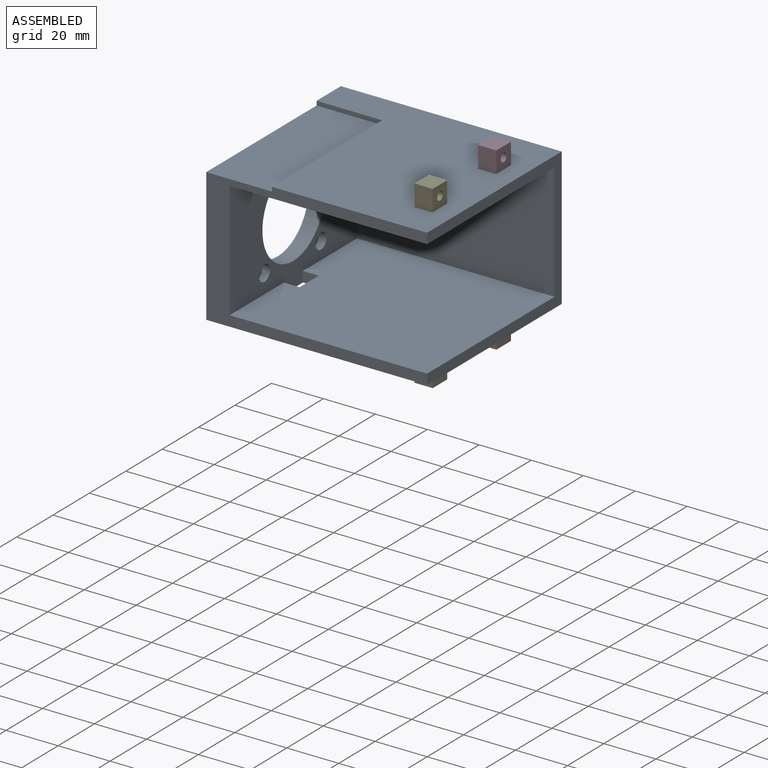
[diagram: assembled view]
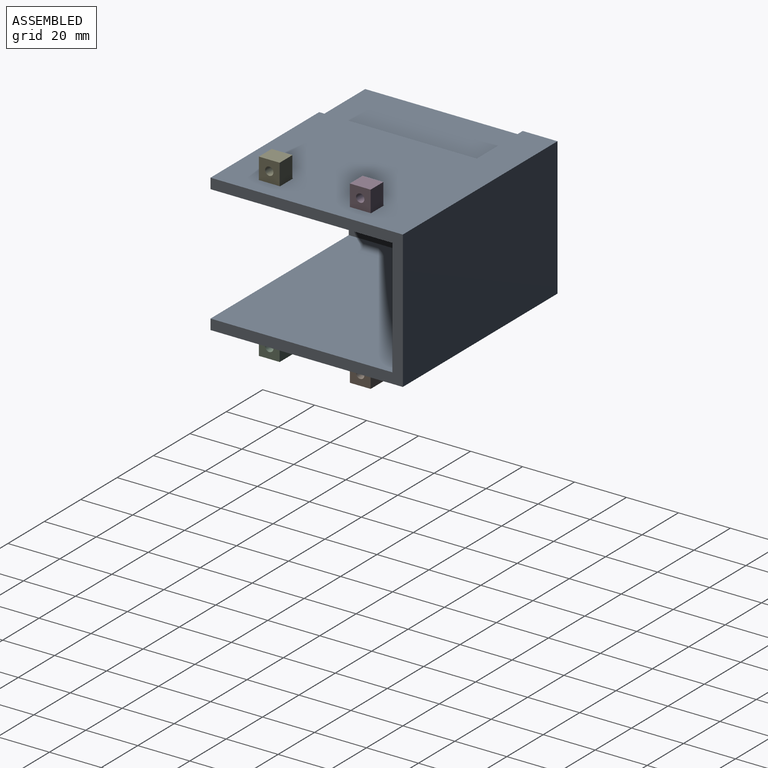
[diagram: assembled view, second angle]
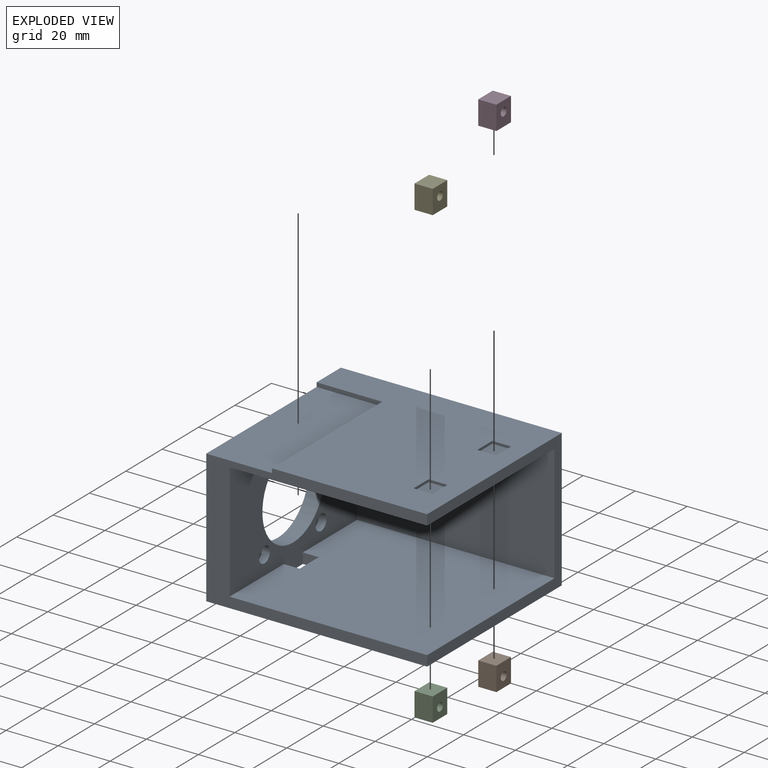
[diagram: exploded view]
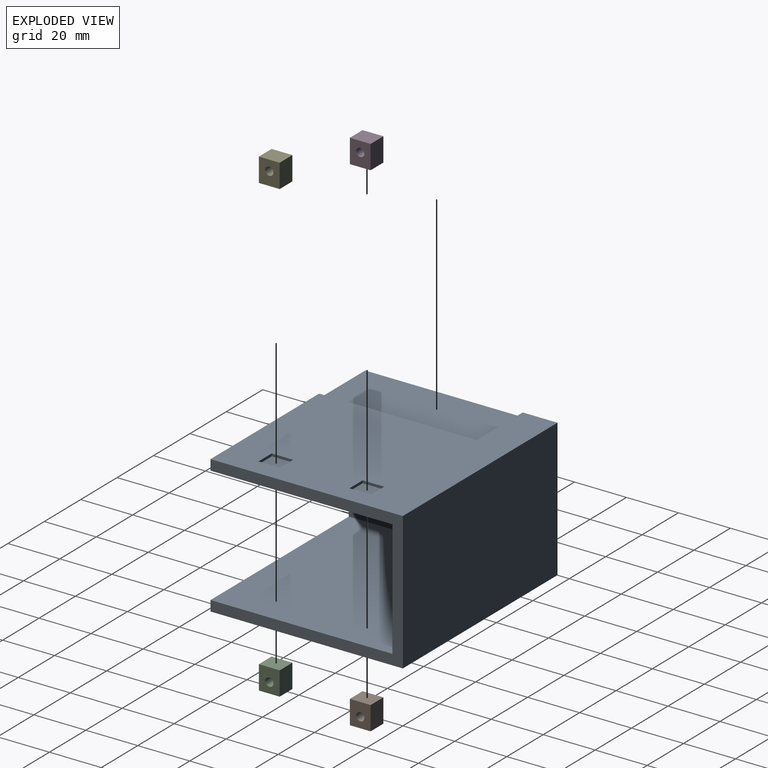
[diagram: exploded view, second angle]
ASSEMBLY  parts=5 mates=4
PART A: 58 faces, bbox 53x74x85 mm
  f0: plane 74x53mm, normal (0,0,1), area 2116mm2, adj f1,f2,f3,f9,f14,f15,f16,f17
  f1: plane 85x53mm, normal (0,-1,0), area 1043.6mm2, adj f0,f2,f3,f4,f11,f12,f13,f55
  f2: plane 85x74mm, normal (-1,0,0), area 6104.8mm2, adj f0,f1,f9,f12,f13,f32,f33,f34
  f3: plane 85x74mm, normal (1,0,0), area 4634.6mm2, adj f0,f1,f9,f12,f35,f36,f37,f38
  f4: plane 76x70mm, normal (1,0,0), area 5256mm2, adj f1,f10,f12,f13,f32,f33,f34
  f5: cylinder r=1.65mm len=3.3mm, axis (0,0,1), area 31.1mm2, adj f22,f30
  f6: cylinder r=1.65mm len=3.3mm, axis (0,0,1), area 31.1mm2, adj f22,f28
  f7: cylinder r=1.65mm len=3.3mm, axis (0,0,1), area 31.1mm2, adj f22,f26
  f8: cylinder r=1.65mm len=3.3mm, axis (0,0,1), area 31.1mm2, adj f22,f24
  f9: plane 85x53mm, normal (0,1,0), area 4505mm2, adj f0,f2,f3,f12
  f10: plane 76x45mm, normal (0,-1,0), area 3420mm2, adj f4,f11,f12,f13
  f11: plane 76x70mm, normal (-1,0,0), area 5320mm2, adj f1,f10,f12,f13
  f12: plane 74x53mm, normal (0,0,-1), area 772mm2, adj f1,f2,f3,f4,f9,f10,f11
  f13: plane 70x49mm, normal (0,0,-1), area 2171mm2, adj f1,f2,f4,f10,f11,f23,f25,f27
  f14: plane 34.22x3mm, normal (0,-1,0), area 102.7mm2, adj f0,f15,f21,f22
  f15: plane 4.02x3.37mm, normal (0.64,-0.77,0), area 15.7mm2, adj f0,f14,f16,f22
  f16: plane 34.28x3mm, normal (1,0,0), area 102.8mm2, adj f0,f15,f17,f22
  f17: plane 4.02x3.37mm, normal (0.64,0.77,0), area 15.7mm2, adj f0,f16,f18,f22
  f18: plane 34.22x3mm, normal (0,1,0), area 102.7mm2, adj f0,f17,f19,f22
  f19: plane 4.02x3.37mm, normal (-0.64,0.77,0), area 15.7mm2, adj f0,f18,f20,f22
  f20: plane 34.28x3mm, normal (-1,0,0), area 102.8mm2, adj f0,f19,f21,f22
  f21: plane 4.02x3.37mm, normal (-0.64,-0.77,0), area 15.7mm2, adj f0,f14,f20,f22
  f22: plane 42.26x41.03mm, normal (0,0,1), area 764.6mm2, adj f5,f6,f7,f8,f14,f15,f16,f17
  f23: cylinder r=17mm len=34mm, axis (0,0,1), area 640.9mm2, adj f13,f22
  f24: plane 6x6mm, normal (0,0,-1), area 19.7mm2, adj f8,f25
  f25: cylinder r=3mm len=6mm, axis (0,0,-1), area 56.5mm2, adj f13,f24
  f26: plane 6x6mm, normal (0,0,-1), area 19.7mm2, adj f7,f27
  f27: cylinder r=3mm len=6mm, axis (0,0,-1), area 56.5mm2, adj f13,f26
  f28: plane 6x6mm, normal (0,0,-1), area 19.7mm2, adj f6,f29
  f29: cylinder r=3mm len=6mm, axis (0,0,-1), area 56.5mm2, adj f13,f28
  f30: plane 6x6mm, normal (0,0,-1), area 19.7mm2, adj f5,f31
  f31: cylinder r=3mm len=6mm, axis (0,0,-1), area 56.5mm2, adj f13,f30
  f32: plane 6.1x4mm, normal (0,-1,0), area 24.4mm2, adj f2,f4,f13,f33
  f33: plane 10.5x4mm, normal (0,0,1), area 42mm2, adj f2,f4,f32,f34
  f34: plane 6.1x4mm, normal (0,1,0), area 24.4mm2, adj f2,f4,f13,f33
  f35: plane 7.3x1mm, normal (0,1,0), area 7.3mm2, adj f3,f36,f38,f39
  f36: plane 8.3x1mm, normal (0,0,1), area 8.3mm2, adj f3,f35,f37,f39
  f37: plane 7.3x1mm, normal (0,-1,0), area 7.3mm2, adj f3,f36,f38,f39
  f38: plane 8.3x1mm, normal (0,0,-1), area 8.3mm2, adj f3,f35,f37,f39
  f39: plane 8.3x7.3mm, normal (1,0,0), area 60.6mm2, adj f35,f36,f37,f38
  f40: plane 8.3x1mm, normal (0,0,1), area 8.3mm2, adj f3,f41,f43,f44
  f41: plane 7.3x1mm, normal (0,-1,0), area 7.3mm2, adj f3,f40,f42,f44
  f42: plane 8.3x1mm, normal (0,0,-1), area 8.3mm2, adj f3,f41,f43,f44
  f43: plane 7.3x1mm, normal (0,1,0), area 7.3mm2, adj f3,f40,f42,f44
  f44: plane 8.3x7.3mm, normal (1,0,0), area 60.6mm2, adj f40,f41,f42,f43
  f45: plane 8.3x1mm, normal (0,0,1), area 8.3mm2, adj f2,f46,f48,f49
  f46: plane 7.3x1mm, normal (0,1,0), area 7.3mm2, adj f2,f45,f47,f49
  f47: plane 8.3x1mm, normal (0,0,-1), area 8.3mm2, adj f2,f46,f48,f49
  f48: plane 7.3x1mm, normal (0,-1,0), area 7.3mm2, adj f2,f45,f47,f49
  f49: plane 8.3x7.3mm, normal (-1,0,0), area 60.6mm2, adj f45,f46,f47,f48
  f50: plane 7.3x1mm, normal (0,1,0), area 7.3mm2, adj f2,f51,f53,f54
  f51: plane 8.3x1mm, normal (0,0,-1), area 8.3mm2, adj f2,f50,f52,f54
  f52: plane 7.3x1mm, normal (0,-1,0), area 7.3mm2, adj f2,f51,f53,f54
  f53: plane 8.3x1mm, normal (0,0,1), area 8.3mm2, adj f2,f50,f52,f54
  f54: plane 8.3x7.3mm, normal (-1,0,0), area 60.6mm2, adj f50,f51,f52,f53
  f55: plane 60.64x1.64mm, normal (0,0,1), area 99.3mm2, adj f1,f3,f56,f57
  f56: plane 25.3x1.64mm, normal (0,-1,0), area 41.4mm2, adj f0,f3,f55,f57
  f57: plane 60.64x25.3mm, normal (1,0,0), area 1534.2mm2, adj f0,f1,f55,f56
PART B: 9 faces, bbox 8x9.2x7 mm
  f0: plane 6x6mm, normal (0,0,1), area 20.2mm2, adj f1,f5
  f1: cylinder r=3mm len=6mm, axis (0,0,-1), area 56.5mm2, adj f0,f2
  f2: plane 9.15x8mm, normal (0,0,1), area 44.9mm2, adj f1,f4,f6,f7,f8
  f3: plane 9.15x8mm, normal (0,0,-1), area 65.2mm2, adj f4,f5,f6,f7,f8
  f4: plane 8x7mm, normal (0,1,0), area 56mm2, adj f2,f3,f6,f7
  f5: cylinder r=1.6mm len=4mm, axis (0,0,-1), area 40.2mm2, adj f0,f3
  f6: plane 9.15x7mm, normal (-1,0,0), area 64mm2, adj f2,f3,f4,f8
  f7: plane 9.15x7mm, normal (1,0,0), area 64mm2, adj f2,f3,f4,f8
  f8: plane 8x7mm, normal (0,-1,0), area 56mm2, adj f2,f3,f6,f7
PART C: same geometry as B
PART D: same geometry as B
PART E: same geometry as B
PLACE A rot(axis=(0,-1,0),90deg) t=(0,35,22.5)mm
PLACE B rot(axis=(-0.58,-0.58,0.58),120deg) t=(-7.3,48.5,-4.15)mm
PLACE C rot(axis=(-0.58,-0.58,0.58),120deg) t=(-7.3,13.5,-4.15)mm
PLACE D rot(axis=(0.58,-0.58,-0.58),120deg) t=(-7.3,56.5,49.15)mm
PLACE E rot(axis=(0.58,-0.58,-0.58),120deg) t=(-7.3,21.5,49.15)mm
MATE fastened A.f44 <-> E.f8  axis (0,0,1) through (-7.3,17.5,48)mm
MATE fastened B.f8 <-> A.f54  axis (0,0,1) through (-7.3,52.5,-3)mm
MATE fastened A.f49 <-> C.f8  axis (0,0,-1) through (-7.3,17.5,-3)mm
MATE fastened A.f39 <-> D.f8  axis (0,0,1) through (-7.3,52.5,48)mm
